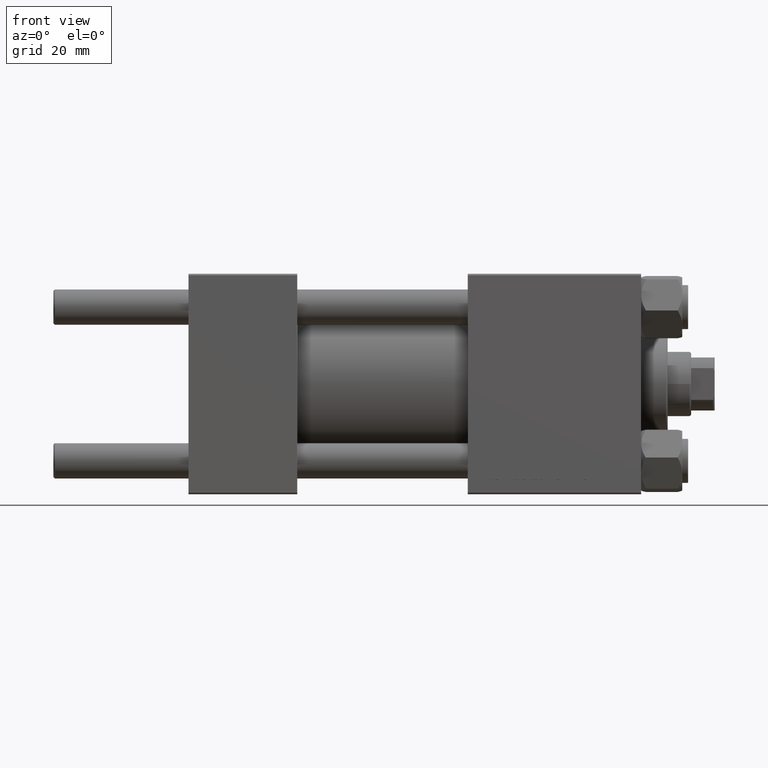
[diagram: clean part render]
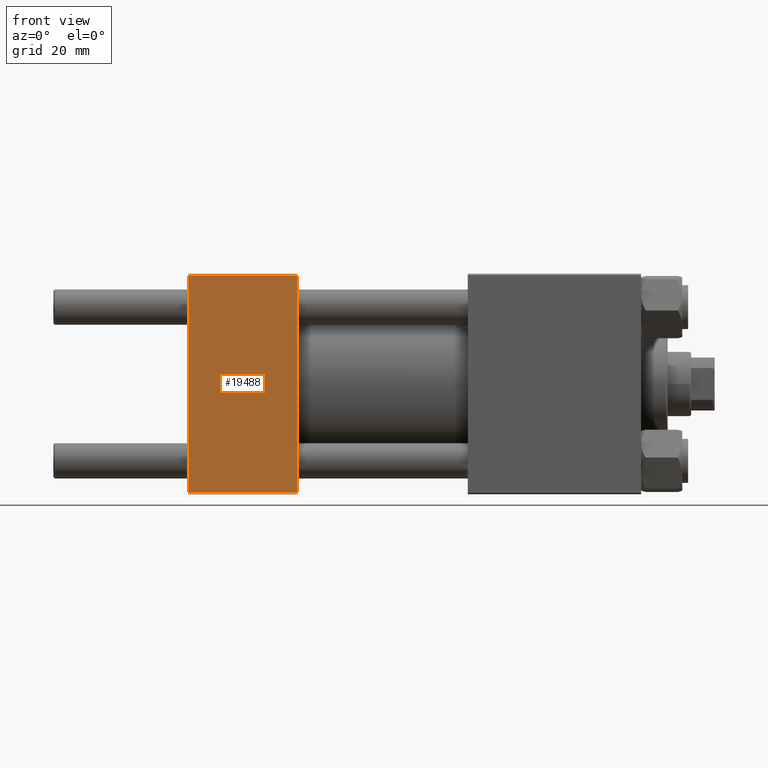
[diagram: same view with one face highlighted and labeled with its STEP entity id]
A machine part, front view. The second image highlights one B-rep face of the part: STEP entity #19488.
In plain terms, the highlighted planar face has unit normal (0, 1, 0).
Its self-contained STEP definition (entity closure, byte-faithful):
#1219 = EDGE_CURVE ( 'NONE', #1353, #49640, #28239, .T. ) ;
#1353 = VERTEX_POINT ( 'NONE', #24955 ) ;
#3392 = CARTESIAN_POINT ( 'NONE',  ( 0.000000000000000000, -37.50000000000000000, -37.00000000000003553 ) ) ;
#5690 = ORIENTED_EDGE ( 'NONE', *, *, #37207, .T. ) ;
#6009 = CARTESIAN_POINT ( 'NONE',  ( 37.00000000000000000, -37.50000000000000000, -37.00000000000003553 ) ) ;
#6142 = LINE ( 'NONE', #25073, #21858 ) ;
#7323 = VERTEX_POINT ( 'NONE', #25715 ) ;
#11367 = ORIENTED_EDGE ( 'NONE', *, *, #1219, .T. ) ;
#14347 = LINE ( 'NONE', #6009, #26286 ) ;
#16298 = AXIS2_PLACEMENT_3D ( 'NONE', #34717, #49121, #49871 ) ;
#19488 = ADVANCED_FACE ( 'NONE', ( #45590 ), #38255, .F. ) ;
#21513 = EDGE_CURVE ( 'NONE', #22578, #1353, #6142, .T. ) ;
#21549 = EDGE_CURVE ( 'NONE', #22578, #7323, #37172, .T. ) ;
#21858 = VECTOR ( 'NONE', #40450, 1000.000000000000000 ) ;
#22578 = VERTEX_POINT ( 'NONE', #26776 ) ;
#24955 = CARTESIAN_POINT ( 'NONE',  ( 0.000000000000000000, -37.50000000000000711, 36.99999999999999289 ) ) ;
#25073 = CARTESIAN_POINT ( 'NONE',  ( 37.00000000000000000, -37.50000000000000711, 36.99999999999999289 ) ) ;
#25715 = CARTESIAN_POINT ( 'NONE',  ( 37.00000000000000000, -37.50000000000000000, -37.00000000000003553 ) ) ;
#26286 = VECTOR ( 'NONE', #45129, 1000.000000000000000 ) ;
#26776 = CARTESIAN_POINT ( 'NONE',  ( 37.00000000000000000, -37.50000000000000711, 36.99999999999999289 ) ) ;
#28239 = LINE ( 'NONE', #36302, #49755 ) ;
#34717 = CARTESIAN_POINT ( 'NONE',  ( 37.00000000000000000, -37.50000000000000711, 37.49999999999999289 ) ) ;
#36085 = ORIENTED_EDGE ( 'NONE', *, *, #21549, .F. ) ;
#36302 = CARTESIAN_POINT ( 'NONE',  ( 0.000000000000000000, -37.50000000000000711, 37.49999999999999289 ) ) ;
#36416 = CARTESIAN_POINT ( 'NONE',  ( 37.00000000000000000, -37.50000000000000711, 37.49999999999999289 ) ) ;
#37172 = LINE ( 'NONE', #36416, #41195 ) ;
#37207 = EDGE_CURVE ( 'NONE', #49640, #7323, #14347, .T. ) ;
#38255 = PLANE ( 'NONE',  #16298 ) ;
#39101 = DIRECTION ( 'NONE',  ( 0.000000000000000000, 9.251858538542971581E-17, -1.000000000000000000 ) ) ;
#40450 = DIRECTION ( 'NONE',  ( -1.000000000000000000, 0.000000000000000000, 0.000000000000000000 ) ) ;
#41195 = VECTOR ( 'NONE', #45016, 1000.000000000000000 ) ;
#45016 = DIRECTION ( 'NONE',  ( 0.000000000000000000, 9.251858538542971581E-17, -1.000000000000000000 ) ) ;
#45129 = DIRECTION ( 'NONE',  ( 1.000000000000000000, 0.000000000000000000, 0.000000000000000000 ) ) ;
#45466 = EDGE_LOOP ( 'NONE', ( #11367, #5690, #36085, #45502 ) ) ;
#45502 = ORIENTED_EDGE ( 'NONE', *, *, #21513, .T. ) ;
#45590 = FACE_OUTER_BOUND ( 'NONE', #45466, .T. ) ;
#49121 = DIRECTION ( 'NONE',  ( -0.000000000000000000, 1.000000000000000000, 9.251858538542971581E-17 ) ) ;
#49640 = VERTEX_POINT ( 'NONE', #3392 ) ;
#49755 = VECTOR ( 'NONE', #39101, 1000.000000000000000 ) ;
#49871 = DIRECTION ( 'NONE',  ( 0.000000000000000000, -9.251858538542971581E-17, 1.000000000000000000 ) ) ;